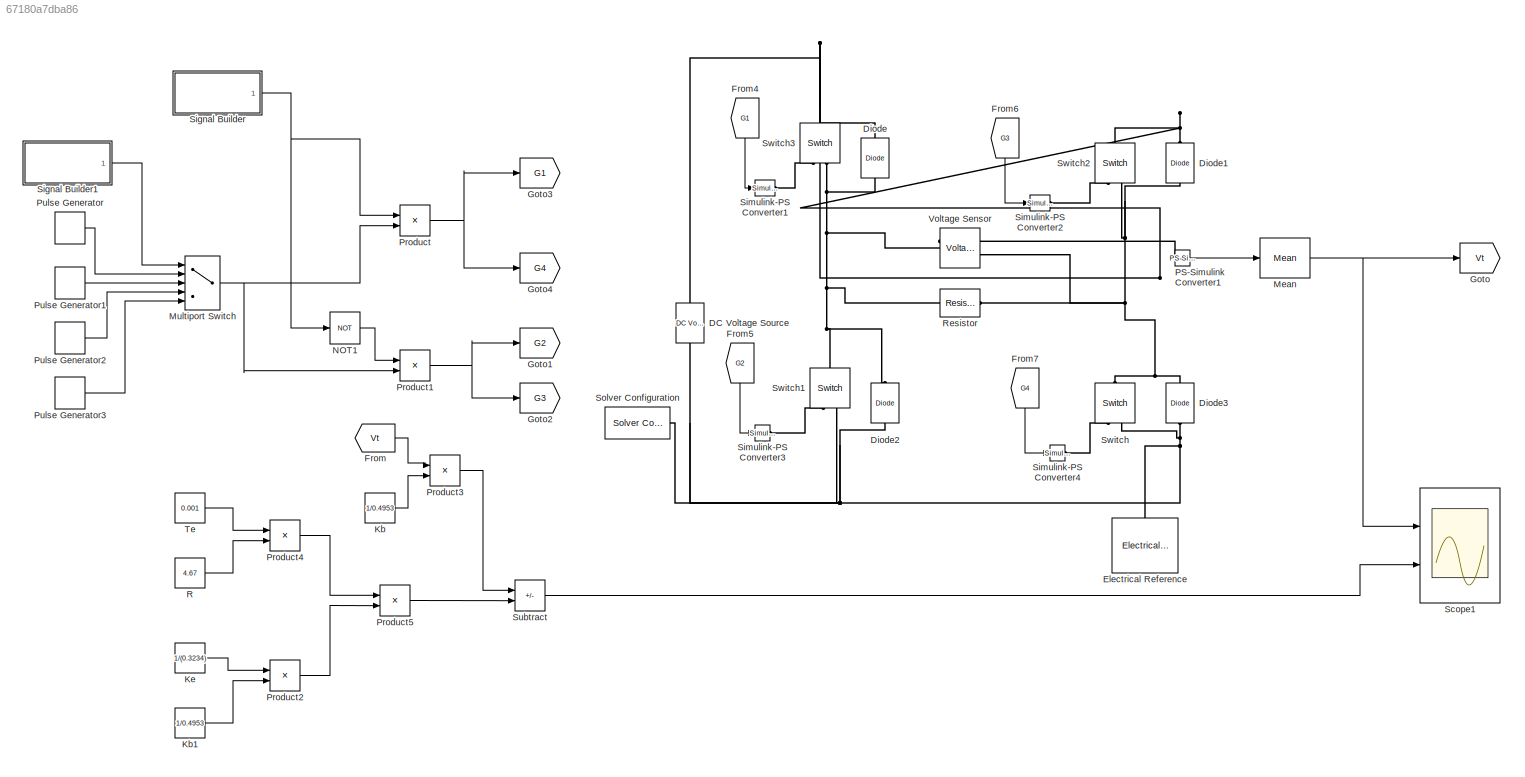
MODEL slx_67180a7dba86
KIND model
CONFIG AbsTol = auto
CONFIG EnableMultiTasking = off
CONFIG FixedStep = auto
CONFIG MaxStep = auto
CONFIG MinStep = auto
CONFIG RelTol = 1e-3
CONFIG SampleTimeConstraint = Unconstrained
CONFIG SolverName = VariableStepAuto
CONFIG StartTime = 0.0
CONFIG StopTime = 20
BLOCK [Reference] DC Voltage Source  REF=fl_lib/Electrical/Electrical Sources/DC Voltage Source
  NameLocation = right
  Ports = [0, 0, 0, 0, 0, 1, 1]
  SourceBlock = fl_lib/Electrical/Electrical Sources/DC Voltage Source
  SourceProductBaseCode = SS
  SourceType = DC Voltage Source
BLOCK [Reference] Diode  REF=fl_lib/Electrical/Electrical Elements/Diode
  NameLocation = right
  Ports = [0, 0, 0, 0, 0, 1, 1]
  SourceBlock = fl_lib/Electrical/Electrical Elements/Diode
  SourceProductBaseCode = SS
  SourceType = Diode
BLOCK [Reference] Diode1  REF=fl_lib/Electrical/Electrical Elements/Diode
  NameLocation = right
  Ports = [0, 0, 0, 0, 0, 1, 1]
  SourceBlock = fl_lib/Electrical/Electrical Elements/Diode
  SourceProductBaseCode = SS
  SourceType = Diode
BLOCK [Reference] Diode2  REF=fl_lib/Electrical/Electrical Elements/Diode
  NameLocation = right
  Ports = [0, 0, 0, 0, 0, 1, 1]
  SourceBlock = fl_lib/Electrical/Electrical Elements/Diode
  SourceProductBaseCode = SS
  SourceType = Diode
BLOCK [Reference] Diode3  REF=fl_lib/Electrical/Electrical Elements/Diode
  NameLocation = right
  Ports = [0, 0, 0, 0, 0, 1, 1]
  SourceBlock = fl_lib/Electrical/Electrical Elements/Diode
  SourceProductBaseCode = SS
  SourceType = Diode
BLOCK [Reference] Electrical Reference  REF=fl_lib/Electrical/Electrical Elements/Electrical Reference
  NameLocation = right
  Ports = [0, 0, 0, 0, 0, 1]
  SourceBlock = fl_lib/Electrical/Electrical Elements/Electrical Reference
  SourceProductBaseCode = SS
  SourceType = Electrical Reference
BLOCK [From] From
  GotoTag = Vt
BLOCK [From] From4
  GotoTag = G1
  NameLocation = left
BLOCK [From] From5
  GotoTag = G2
  NameLocation = left
BLOCK [From] From6
  GotoTag = G3
  NameLocation = left
BLOCK [From] From7
  GotoTag = G4
  NameLocation = left
BLOCK [Goto] Goto
  GotoTag = Vt
BLOCK [Goto] Goto1
  GotoTag = G2
BLOCK [Goto] Goto2
  GotoTag = G3
BLOCK [Goto] Goto3
  GotoTag = G1
BLOCK [Goto] Goto4
  GotoTag = G4
BLOCK [Constant] Kb
  Value = 1/0.4953
BLOCK [Constant] Kb1
  Value = 1/0.4953
BLOCK [Constant] Ke
  Value = 1/(0.3234)
BLOCK [Reference] Mean  REF=spsMeanLib/Mean
  Ports = [1, 1]
  SourceBlock = spsMeanLib/Mean
  SourceProductBaseCode = PS
  SourceType = Mean
BLOCK [MultiPortSwitch] Multiport Switch
  InputSameDT = off
  Inputs = 4
  Ports = [5, 1]
  SaturateOnIntegerOverflow = off
BLOCK [Logic] NOT1
  AllPortsSameDT = off
  IconShape = distinctive
  Operator = NOT
  OutDataTypeStr = boolean
  Ports = [1, 1]
BLOCK [Reference] PS-Simulink Converter1  REF=nesl_utility/PS-Simulink
Converter
  Ports = [0, 1, 0, 0, 0, 1]
  SourceBlock = nesl_utility/PS-Simulink\nConverter
  SourceProductBaseCode = PW,SS
  SourceType = PS-Simulink\nConverter
BLOCK [Product] Product
  Ports = [2, 1]
BLOCK [Product] Product1
  Ports = [2, 1]
BLOCK [Product] Product2
  Ports = [2, 1]
BLOCK [Product] Product3
  Ports = [2, 1]
BLOCK [Product] Product4
  Ports = [2, 1]
BLOCK [Product] Product5
  Ports = [2, 1]
BLOCK [DiscretePulseGenerator] Pulse Generator
  Amplitude = 12
  Period = 22
  Ports = [0, 1]
  PulseType = Time based
  PulseWidth = 15
BLOCK [DiscretePulseGenerator] Pulse Generator1
  Amplitude = -10
  Period = 22
  Ports = [0, 1]
  PulseType = Time based
  PulseWidth = 30
BLOCK [DiscretePulseGenerator] Pulse Generator2
  Amplitude = 4
  Period = 22
  Ports = [0, 1]
  PulseType = Time based
  PulseWidth = 50
BLOCK [DiscretePulseGenerator] Pulse Generator3
  Amplitude = 16
  Period = 22
  Ports = [0, 1]
  PulseType = Time based
  PulseWidth = 99.99
BLOCK [Constant] R
  Value = 4.67
BLOCK [Reference] Resistor  REF=fl_lib/Electrical/Electrical Elements/Resistor
  Ports = [0, 0, 0, 0, 0, 1, 1]
  SourceBlock = fl_lib/Electrical/Electrical Elements/Resistor
  SourceProductBaseCode = SS
  SourceType = Resistor
BLOCK [Scope] Scope1
  Floating = off
  NumInputPorts = 2
  Ports = [2]
  ScopeSpecificationString = Simulink.scopes.TimeScopeBlockCfg('CurrentConfiguration', extmgr.ConfigurationSet(extmgr.Configuration('Core','General UI',true),extmgr.Configuration('Core','Source UI',true),extmgr.Configuration('Sources','WiredSimulink',true,'DataLoggingVariableName','ScopeData1'),extmgr.Configuration('Visuals','Time Domain',true,'SerializedDisplays',{struct('MinYLimReal','-13.38266','MaxYLimReal','19.37115','YL...<+1373ch>
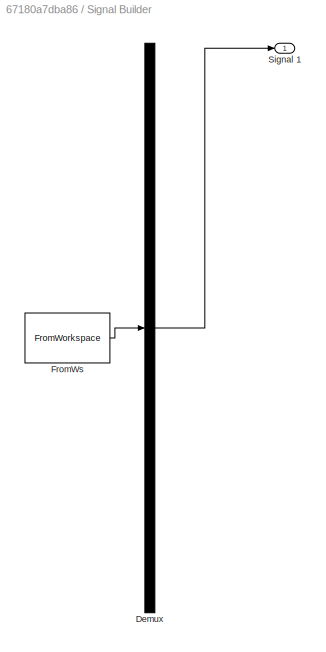
BLOCK [SubSystem] Signal Builder
  ClipboardFcn = sigbuilder_block('clipboard');
  CloseFcn = sigbuilder_block('close');
  ContinueFcn = sigbuilder_block('continue');
  CopyFcn = sigbuilder_block('copy');
  DeleteFcn = sigbuilder_block('delete');
  LoadFcn = sigbuilder_block('load');
  MaskHideContents = on
  ModelCloseFcn = sigbuilder_block('modelClose');
  NameChangeFcn = sigbuilder_block('namechange');
  OpenFcn = sigbuilder_block('open',[5.4 30 1141.2 522.6 ]);
  PauseFcn = sigbuilder_block('pause');
  Ports = [0, 1]
  PreSaveFcn = sigbuilder_block('preSave');
  RequestExecContextInheritance = off
  StartFcn = sigbuilder_block('start');
  StopFcn = sigbuilder_block('stop');
  Tag = STV Subsys
BLOCK [Demux] Signal Builder/Demux
  DisplayOption = none
  Outputs = 1
  Ports = [1, 1]
  Tag = STV Demux
BLOCK [FromWorkspace] Signal Builder/FromWs
  Tag = STV FromWs
  VariableName = tuvar
BLOCK [Outport] Signal Builder/Signal 1
  Tag = STV Outport
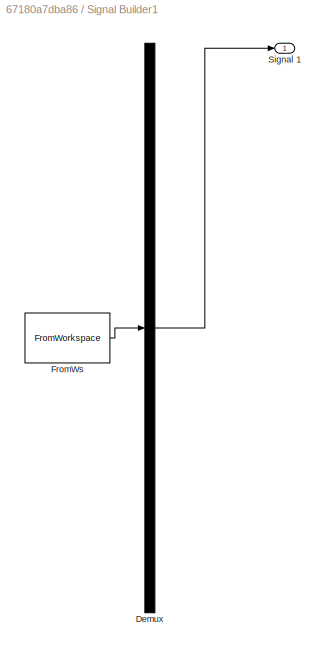
BLOCK [SubSystem] Signal Builder1
  ClipboardFcn = sigbuilder_block('clipboard');
  CloseFcn = sigbuilder_block('close');
  ContinueFcn = sigbuilder_block('continue');
  CopyFcn = sigbuilder_block('copy');
  DeleteFcn = sigbuilder_block('delete');
  LoadFcn = sigbuilder_block('load');
  MaskHideContents = on
  ModelCloseFcn = sigbuilder_block('modelClose');
  NameChangeFcn = sigbuilder_block('namechange');
  OpenFcn = sigbuilder_block('open',[5.4 30 1141.2 522.6 ]);
  PauseFcn = sigbuilder_block('pause');
  Ports = [0, 1]
  PreSaveFcn = sigbuilder_block('preSave');
  RequestExecContextInheritance = off
  StartFcn = sigbuilder_block('start');
  StopFcn = sigbuilder_block('stop');
  Tag = STV Subsys
BLOCK [Demux] Signal Builder1/Demux
  DisplayOption = none
  Outputs = 1
  Ports = [1, 1]
  Tag = STV Demux
BLOCK [FromWorkspace] Signal Builder1/FromWs
  Tag = STV FromWs
  VariableName = tuvar
BLOCK [Outport] Signal Builder1/Signal 1
  Tag = STV Outport
BLOCK [Reference] Simulink-PS Converter1  REF=nesl_utility/Simulink-PS
Converter
  Ports = [1, 0, 0, 0, 0, 0, 1]
  SourceBlock = nesl_utility/Simulink-PS\nConverter
  SourceProductBaseCode = PW,SS
  SourceType = Simulink-PS\nConverter
BLOCK [Reference] Simulink-PS Converter2  REF=nesl_utility/Simulink-PS
Converter
  Ports = [1, 0, 0, 0, 0, 0, 1]
  SourceBlock = nesl_utility/Simulink-PS\nConverter
  SourceProductBaseCode = PW,SS
  SourceType = Simulink-PS\nConverter
BLOCK [Reference] Simulink-PS Converter3  REF=nesl_utility/Simulink-PS
Converter
  Ports = [1, 0, 0, 0, 0, 0, 1]
  SourceBlock = nesl_utility/Simulink-PS\nConverter
  SourceProductBaseCode = PW,SS
  SourceType = Simulink-PS\nConverter
BLOCK [Reference] Simulink-PS Converter4  REF=nesl_utility/Simulink-PS
Converter
  Ports = [1, 0, 0, 0, 0, 0, 1]
  SourceBlock = nesl_utility/Simulink-PS\nConverter
  SourceProductBaseCode = PW,SS
  SourceType = Simulink-PS\nConverter
BLOCK [Reference] Solver Configuration  REF=nesl_utility/Solver
Configuration
  Ports = [0, 0, 0, 0, 0, 0, 1]
  SourceBlock = nesl_utility/Solver\nConfiguration
  SourceProductBaseCode = PW,SS
  SourceType = Solver\nConfiguration
BLOCK [Sum] Subtract
  IconShape = rectangular
  Inputs = +-
  Ports = [2, 1]
BLOCK [Reference] Switch  REF=fl_lib/Electrical/Electrical Elements/Switch
  NameLocation = right
  Ports = [0, 0, 0, 0, 0, 1, 2]
  SourceBlock = fl_lib/Electrical/Electrical Elements/Switch
  SourceProductBaseCode = SS
  SourceType = Switch
BLOCK [Reference] Switch1  REF=fl_lib/Electrical/Electrical Elements/Switch
  NameLocation = right
  Ports = [0, 0, 0, 0, 0, 1, 2]
  SourceBlock = fl_lib/Electrical/Electrical Elements/Switch
  SourceProductBaseCode = SS
  SourceType = Switch
BLOCK [Reference] Switch2  REF=fl_lib/Electrical/Electrical Elements/Switch
  NameLocation = right
  Ports = [0, 0, 0, 0, 0, 1, 2]
  SourceBlock = fl_lib/Electrical/Electrical Elements/Switch
  SourceProductBaseCode = SS
  SourceType = Switch
BLOCK [Reference] Switch3  REF=fl_lib/Electrical/Electrical Elements/Switch
  NameLocation = right
  Ports = [0, 0, 0, 0, 0, 1, 2]
  SourceBlock = fl_lib/Electrical/Electrical Elements/Switch
  SourceProductBaseCode = SS
  SourceType = Switch
BLOCK [Constant] Te
  Value = 0.001
BLOCK [Reference] Voltage Sensor  REF=fl_lib/Electrical/Electrical Sensors/Voltage Sensor
  NameLocation = top
  Ports = [0, 0, 0, 0, 0, 1, 2]
  SourceBlock = fl_lib/Electrical/Electrical Sensors/Voltage Sensor
  SourceProductBaseCode = SS
  SourceType = Voltage Sensor
LINE From4:1 -> Simulink-PS Converter1:1
LINE From5:1 -> Simulink-PS Converter3:1
LINE From6:1 -> Simulink-PS Converter2:1
LINE From7:1 -> Simulink-PS Converter4:1
LINE From:1 -> Product3:1
LINE Kb1:1 -> Product2:2
LINE Kb:1 -> Product3:2
LINE Ke:1 -> Product2:1
NET Mean:1 -> Goto:1, Scope1:1
NET Multiport Switch:1 -> Product1:2, Product:2
LINE NOT1:1 -> Product1:1
LINE PS-Simulink Converter1:1 -> Mean:1
NET Product1:1 -> Goto1:1, Goto2:1
LINE Product2:1 -> Product5:2
LINE Product3:1 -> Subtract:1
LINE Product4:1 -> Product5:1
LINE Product5:1 -> Subtract:2
NET Product:1 -> Goto3:1, Goto4:1
LINE Pulse Generator1:1 -> Multiport Switch:3
LINE Pulse Generator2:1 -> Multiport Switch:4
LINE Pulse Generator3:1 -> Multiport Switch:5
LINE Pulse Generator:1 -> Multiport Switch:2
LINE R:1 -> Product4:2
LINE Signal Builder1:1 -> Multiport Switch:1
NET Signal Builder:1 -> NOT1:1, Product:1
LINE Subtract:1 -> Scope1:2
LINE Te:1 -> Product4:1
PNET net1: DC Voltage Source:LConn1 -- Diode1:RConn1 -- Diode:RConn1 -- Switch2:LConn1 -- Switch3:LConn1
PNET net2: DC Voltage Source:RConn1 -- Diode2:LConn1 -- Diode3:LConn1 -- Electrical Reference:LConn1 -- Solver Configuration:RConn1 -- Switch1:RConn2 -- Switch:RConn2
PNET net3: Diode1:LConn1 -- Diode3:RConn1 -- Resistor:RConn1 -- Switch2:RConn2 -- Switch:LConn1 -- Voltage Sensor:RConn2
PNET net4: Diode2:RConn1 -- Diode:LConn1 -- Resistor:LConn1 -- Switch1:LConn1 -- Switch3:RConn2 -- Voltage Sensor:LConn1
PLINE PS-Simulink Converter1:LConn1 -- Voltage Sensor:RConn1
PLINE Simulink-PS Converter1:RConn1 -- Switch3:RConn1
PLINE Simulink-PS Converter2:RConn1 -- Switch2:RConn1
PLINE Simulink-PS Converter3:RConn1 -- Switch1:RConn1
PLINE Simulink-PS Converter4:RConn1 -- Switch:RConn1
note: NET lines group one-source signal fan-out (src -> all destinations, sorted); 1:1 wires keep LINE; PNET lines group multi-terminal physical nets as a canonical sorted terminal list (undirected conserving connections); 2-terminal nets keep the pairwise PLINE form
